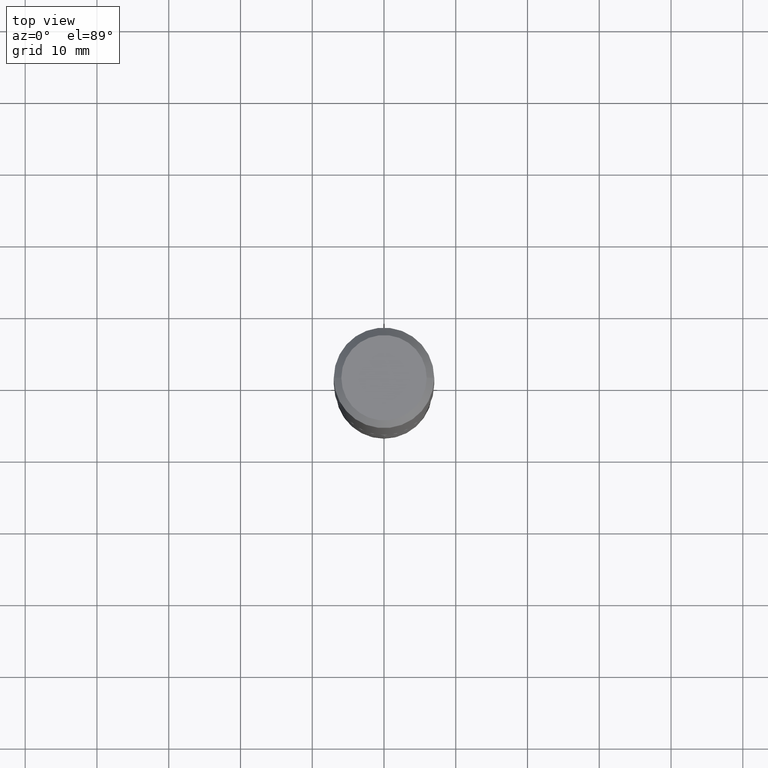
[diagram: clean part render]
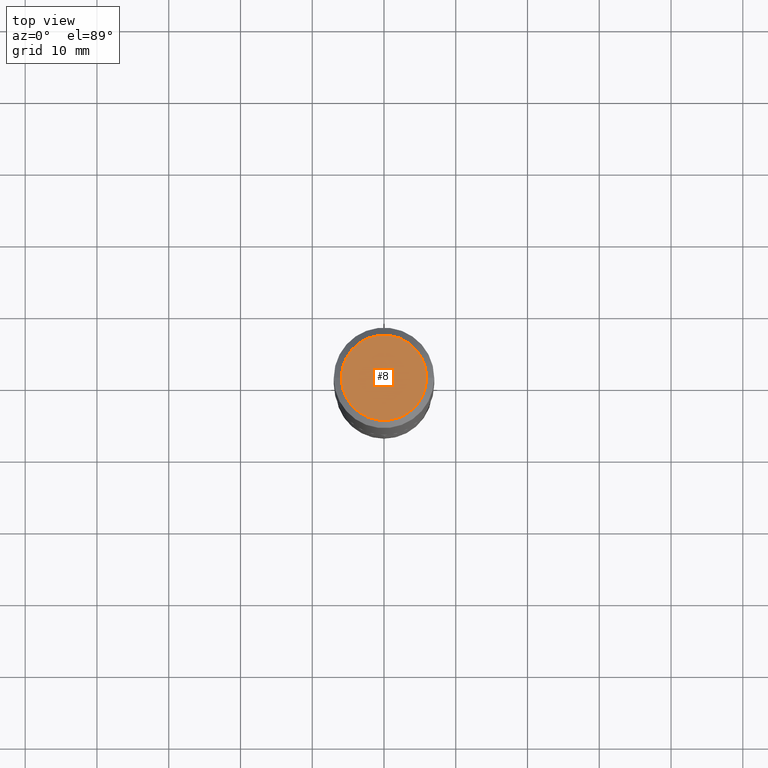
[diagram: same view with one face highlighted and labeled with its STEP entity id]
A machine part, top view. The second image highlights one B-rep face of the part: STEP entity #8.
In plain terms, the highlighted planar face has unit normal (0, -0, -1).
Its self-contained STEP definition (entity closure, byte-faithful):
#4 = CIRCLE ( 'NONE', #113, 0.2342600000000000238 ) ;
#8 = ADVANCED_FACE ( 'NONE', ( #269 ), #318, .F. ) ;
#26 = CARTESIAN_POINT ( 'NONE',  ( -5.014852121625167883E-47, 7.159879756154482429E-33, 2.050671065172242981E-18 ) ) ;
#36 = CARTESIAN_POINT ( 'NONE',  ( -1.002970424325033577E-46, 1.431975951230896486E-32, 4.101342130344485961E-18 ) ) ;
#39 = VERTEX_POINT ( 'NONE', #462 ) ;
#46 = EDGE_LOOP ( 'NONE', ( #452, #74 ) ) ;
#51 = CARTESIAN_POINT ( 'NONE',  ( 0.2342600000000000238, -1.821115673845785155E-15, 4.101342130356573868E-18 ) ) ;
#55 = AXIS2_PLACEMENT_3D ( 'NONE', #359, #361, #248 ) ;
#74 = ORIENTED_EDGE ( 'NONE', *, *, #334, .T. ) ;
#82 = VERTEX_POINT ( 'NONE', #51 ) ;
#113 = AXIS2_PLACEMENT_3D ( 'NONE', #36, #390, #206 ) ;
#127 = DIRECTION ( 'NONE',  ( 2.438088387897960049E-29, -3.491481338843145188E-15, -1.000000000000000000 ) ) ;
#206 = DIRECTION ( 'NONE',  ( 1.000000000000000000, -6.982962677686267499E-15, 4.876157962347795834E-29 ) ) ;
#248 = DIRECTION ( 'NONE',  ( 1.000000000000000000, -6.982962677686267499E-15, 4.876157962347795834E-29 ) ) ;
#260 = CIRCLE ( 'NONE', #55, 0.2342600000000000238 ) ;
#269 = FACE_OUTER_BOUND ( 'NONE', #46, .T. ) ;
#282 = EDGE_CURVE ( 'NONE', #39, #82, #4, .T. ) ;
#318 = PLANE ( 'NONE',  #407 ) ;
#334 = EDGE_CURVE ( 'NONE', #82, #39, #260, .T. ) ;
#359 = CARTESIAN_POINT ( 'NONE',  ( -1.002970424325033577E-46, 1.431975951230896486E-32, 4.101342130344485961E-18 ) ) ;
#361 = DIRECTION ( 'NONE',  ( -2.445468806185136597E-29, 3.491481338843145583E-15, 1.000000000000000000 ) ) ;
#390 = DIRECTION ( 'NONE',  ( -2.445468806185136597E-29, 3.491481338843145583E-15, 1.000000000000000000 ) ) ;
#407 = AXIS2_PLACEMENT_3D ( 'NONE', #26, #127, #411 ) ;
#411 = DIRECTION ( 'NONE',  ( -1.000000000000000000, 6.982962677686265922E-15, -4.876176775795935793E-29 ) ) ;
#452 = ORIENTED_EDGE ( 'NONE', *, *, #282, .T. ) ;
#462 = CARTESIAN_POINT ( 'NONE',  ( -0.2342600000000000238, 1.707997756148671759E-15, 4.101342130332794026E-18 ) ) ;